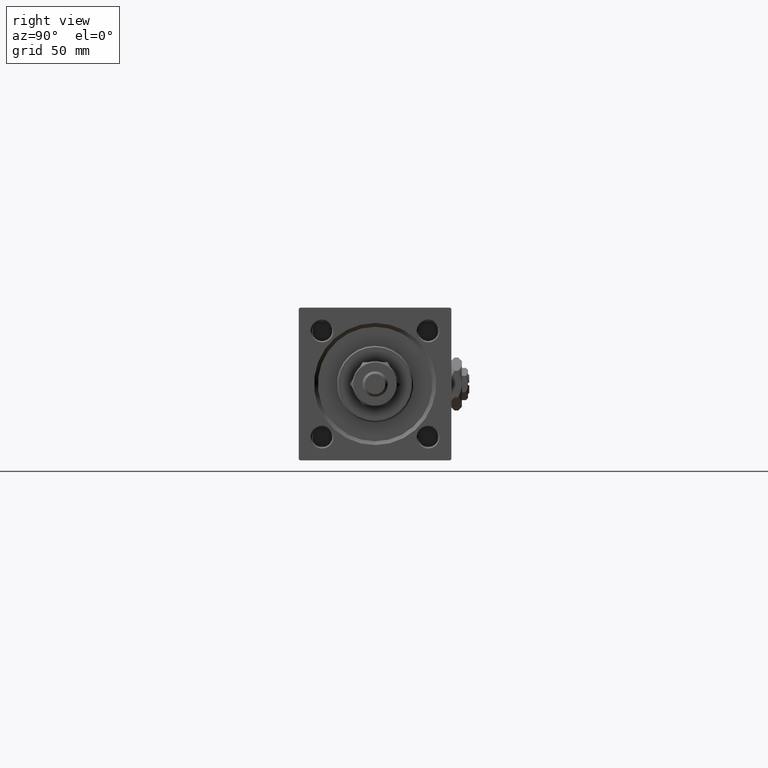
[diagram: clean part render]
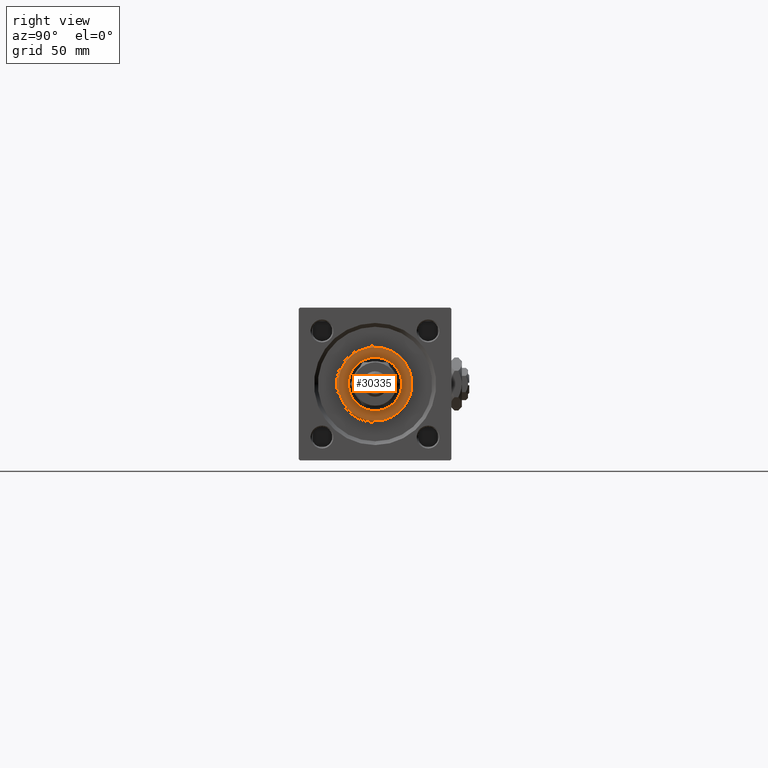
[diagram: same view with one face highlighted and labeled with its STEP entity id]
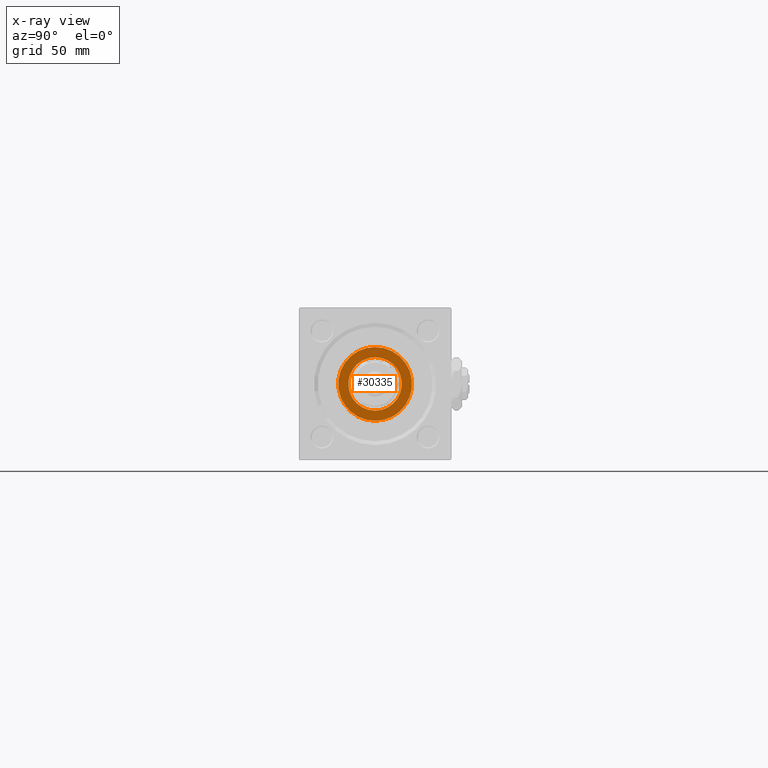
[diagram: x-ray of the same camera — body ghosted, the highlighted face saturated]
A machine part, right view. The second image highlights one B-rep face of the part: STEP entity #30335.
The next image is the same camera in x-ray: the body ghosted, the highlighted face saturated — about 0% of this face is hidden behind the body in this view.
In plain terms, the highlighted planar face has unit normal (1, 0, 0).
Its self-contained STEP definition (entity closure, byte-faithful):
#307 = VERTEX_POINT ( 'NONE', #10430 ) ;
#3227 = AXIS2_PLACEMENT_3D ( 'NONE', #25035, #12757, #4329 ) ;
#3483 = CARTESIAN_POINT ( 'NONE',  ( 0.000000000000000000, 0.000000000000000000, 36.69999999999999574 ) ) ;
#4329 = DIRECTION ( 'NONE',  ( 1.000000000000000000, 0.000000000000000000, 0.000000000000000000 ) ) ;
#4380 = DIRECTION ( 'NONE',  ( 1.000000000000000000, 0.000000000000000000, -0.000000000000000000 ) ) ;
#5213 = CARTESIAN_POINT ( 'NONE',  ( -14.50000000000001776, 0.000000000000000000, 36.69999999999999574 ) ) ;
#5299 = DIRECTION ( 'NONE',  ( 0.000000000000000000, 0.000000000000000000, 1.000000000000000000 ) ) ;
#7444 = ORIENTED_EDGE ( 'NONE', *, *, #35341, .T. ) ;
#8460 = EDGE_CURVE ( 'NONE', #10423, #19121, #43785, .T. ) ;
#8926 = EDGE_CURVE ( 'NONE', #19121, #10423, #41174, .T. ) ;
#10266 = CARTESIAN_POINT ( 'NONE',  ( 0.000000000000000000, 0.000000000000000000, 36.69999999999999574 ) ) ;
#10423 = VERTEX_POINT ( 'NONE', #36192 ) ;
#10430 = CARTESIAN_POINT ( 'NONE',  ( 14.50000000000001776, 1.806354028742346985E-15, 36.69999999999999574 ) ) ;
#10558 = EDGE_LOOP ( 'NONE', ( #34037, #26540 ) ) ;
#12757 = DIRECTION ( 'NONE',  ( 0.000000000000000000, 0.000000000000000000, 1.000000000000000000 ) ) ;
#14537 = CARTESIAN_POINT ( 'NONE',  ( 0.000000000000000000, 0.000000000000000000, 36.69999999999999574 ) ) ;
#16911 = FACE_BOUND ( 'NONE', #10558, .T. ) ;
#17179 = DIRECTION ( 'NONE',  ( 0.000000000000000000, 0.000000000000000000, 1.000000000000000000 ) ) ;
#17768 = DIRECTION ( 'NONE',  ( 0.000000000000000000, 0.000000000000000000, 1.000000000000000000 ) ) ;
#18710 = PLANE ( 'NONE',  #29387 ) ;
#19121 = VERTEX_POINT ( 'NONE', #41480 ) ;
#19746 = CIRCLE ( 'NONE', #3227, 14.50000000000001776 ) ;
#20093 = DIRECTION ( 'NONE',  ( 0.000000000000000000, 0.000000000000000000, 1.000000000000000000 ) ) ;
#20847 = EDGE_CURVE ( 'NONE', #52145, #307, #19746, .T. ) ;
#21906 = DIRECTION ( 'NONE',  ( 1.000000000000000000, 0.000000000000000000, 0.000000000000000000 ) ) ;
#23287 = CIRCLE ( 'NONE', #46780, 14.50000000000001776 ) ;
#25035 = CARTESIAN_POINT ( 'NONE',  ( 0.000000000000000000, 0.000000000000000000, 36.69999999999999574 ) ) ;
#26540 = ORIENTED_EDGE ( 'NONE', *, *, #8460, .F. ) ;
#29387 = AXIS2_PLACEMENT_3D ( 'NONE', #10266, #17179, #4380 ) ;
#29925 = AXIS2_PLACEMENT_3D ( 'NONE', #14537, #5299, #21906 ) ;
#30335 = ADVANCED_FACE ( 'NONE', ( #16911, #43494 ), #18710, .T. ) ;
#31666 = ORIENTED_EDGE ( 'NONE', *, *, #20847, .T. ) ;
#34037 = ORIENTED_EDGE ( 'NONE', *, *, #8926, .F. ) ;
#35341 = EDGE_CURVE ( 'NONE', #307, #52145, #23287, .T. ) ;
#36192 = CARTESIAN_POINT ( 'NONE',  ( -10.50000000000000000, 1.285879139104720831E-15, 36.69999999999999574 ) ) ;
#36715 = DIRECTION ( 'NONE',  ( 1.000000000000000000, 0.000000000000000000, 0.000000000000000000 ) ) ;
#41174 = CIRCLE ( 'NONE', #29925, 10.50000000000000000 ) ;
#41480 = CARTESIAN_POINT ( 'NONE',  ( 10.50000000000000000, 0.000000000000000000, 36.69999999999999574 ) ) ;
#42549 = CARTESIAN_POINT ( 'NONE',  ( 0.000000000000000000, 0.000000000000000000, 36.69999999999999574 ) ) ;
#43494 = FACE_OUTER_BOUND ( 'NONE', #46547, .T. ) ;
#43785 = CIRCLE ( 'NONE', #50739, 10.50000000000000000 ) ;
#46547 = EDGE_LOOP ( 'NONE', ( #31666, #7444 ) ) ;
#46780 = AXIS2_PLACEMENT_3D ( 'NONE', #42549, #17768, #50724 ) ;
#50724 = DIRECTION ( 'NONE',  ( 1.000000000000000000, 0.000000000000000000, 0.000000000000000000 ) ) ;
#50739 = AXIS2_PLACEMENT_3D ( 'NONE', #3483, #20093, #36715 ) ;
#52145 = VERTEX_POINT ( 'NONE', #5213 ) ;